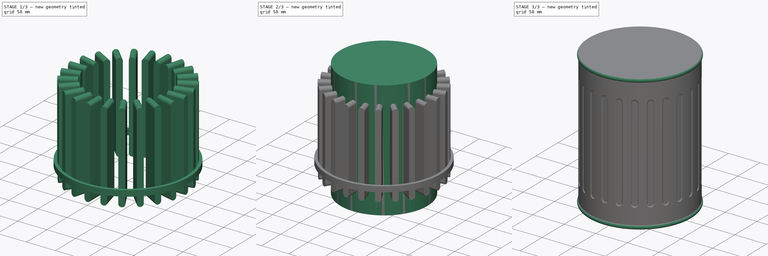
[diagram: build sequence overview — one tinted view per stage of 3, left to right]
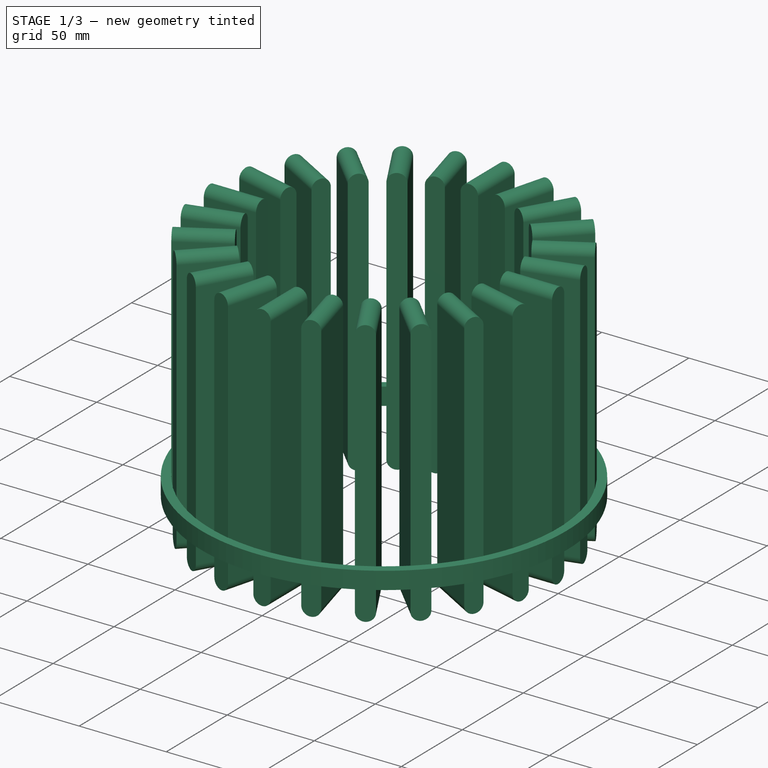
[diagram: stage 1 of 3 — iso view after this stage's code; geometry added in this stage tinted green]
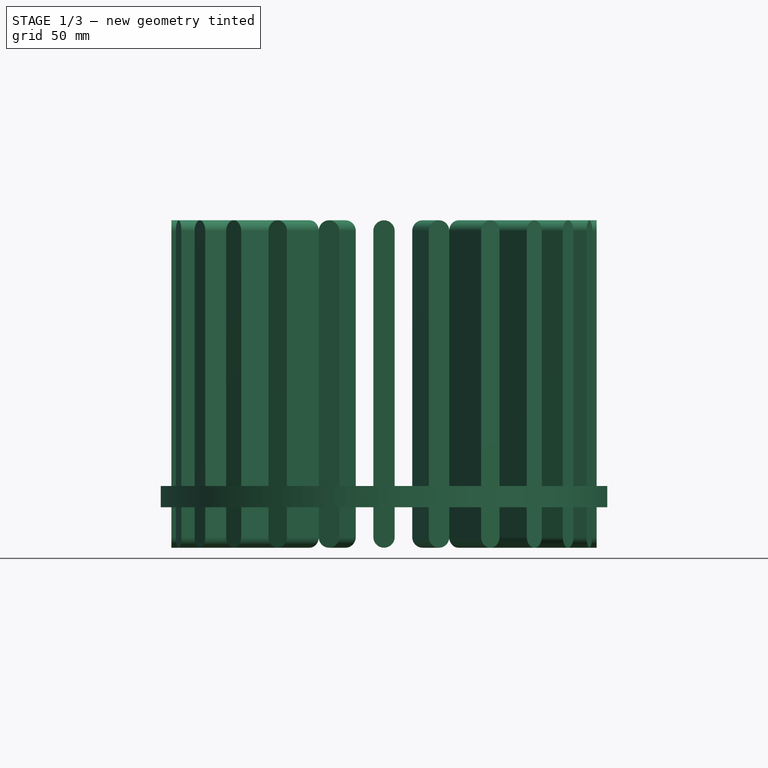
[diagram: stage 1 of 3 — front view after this stage's code; geometry added in this stage tinted green]
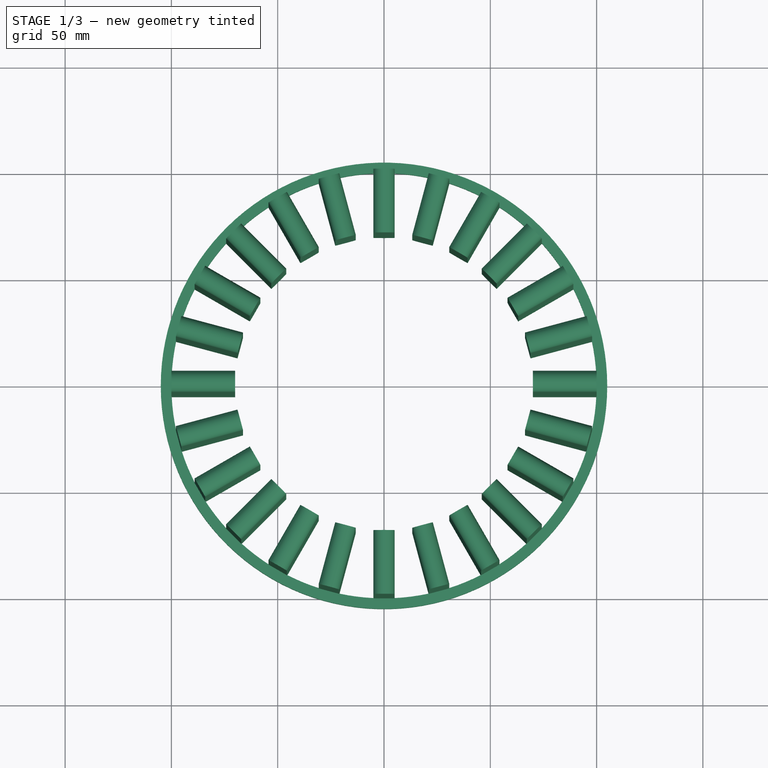
[diagram: stage 1 of 3 — top view after this stage's code; geometry added in this stage tinted green]
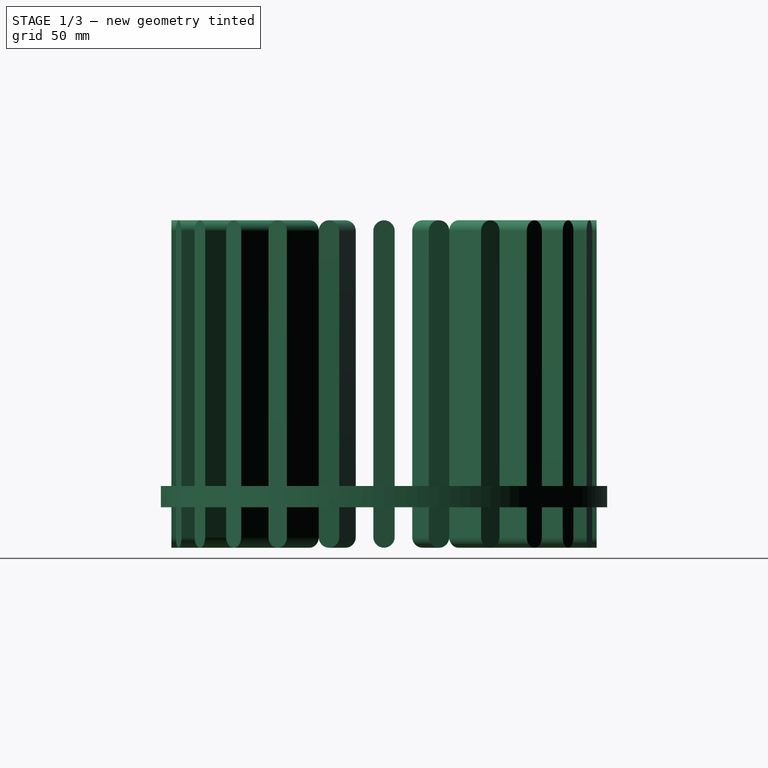
[diagram: stage 1 of 3 — right view after this stage's code; geometry added in this stage tinted green]
FCSTD DOCUMENT  (FreeCAD 0.19R24366 (Git))
Label: TrashCan
License: Creative Commons Attribution-NonCommercial-ShareAlike
LicenseURL: http://creativecommons.org/licenses/by-nc-sa/4.0/
objects: Sketcher::SketchObject×5, PartDesign::Pad×3, PartDesign::Body×2, Spreadsheet::Sheet×1, PartDesign::Revolution×1, PartDesign::PolarPattern×1, PartDesign::Pocket×1, Part::Cut×1, Part::Chamfer×1
note: 20 computed .brp shape members not serialized (recipe doc carries the construction recipe); baked Part::Feature solids carry a one-line shape summary decoded from their .brp

FEATURE [PartDesign::Body] Body
  Group = -> [Sketch,Pad,Sketch001,Revolution]
  Origin = -> Origin
  Tip = -> Revolution
FEATURE [Sketcher::SketchObject] Sketch002
  AttachmentOffset = pos=(0,0,70) rot=(0,0,1;0rad)
  FullyConstrained = true
  MapMode = 5
  Placement = pos=(0,-70,-1.55e-14) rot=(1,0,0;1.5708rad)
  Support = -> [XZ_Plane001]
  expr: Constraints[7] = <<Spreadsheet>>.Radius / 16
  expr: Constraints[14] = <<Spreadsheet>>.Height * 2 / 3
  expr: Constraints[9] = <<Spreadsheet>>.Height
  sketch-geometry (6):
    g0: ArcOfCircle CenterX=0 CenterY=180 CenterZ=0 NormalX=0 NormalY=0 NormalZ=1 AngleXU=0 Radius=5 StartAngle=-9e-16 EndAngle=3.14159
    g1: ArcOfCircle CenterX=-3e-16 CenterY=36 CenterZ=0 NormalX=0 NormalY=0 NormalZ=1 AngleXU=0 Radius=5 StartAngle=3.14159 EndAngle=6.28319
    g2: LineSegment StartX=-5 StartY=180 StartZ=0 EndX=-5 EndY=36 EndZ=0
    g3: LineSegment StartX=5 StartY=180 StartZ=0 EndX=5 EndY=36 EndZ=0
    g4: LineSegment StartX=0 StartY=0 StartZ=0 EndX=5e-16 EndY=216 EndZ=0
    g5: LineSegment StartX=-5 StartY=108 StartZ=0 EndX=5 EndY=108 EndZ=0
  constraints (15):
    c: Tangent(g0,g3) = 1.5708
    c: Tangent(g0,g2) = -1.5708
    c: Tangent(g2,g1) = -1.5708
    c: Tangent(g3,g1) = 1.5708
    c: Vertical(g2)
    c: Equal(g0,g1)
    c: PointOnObject(g0,g-2)
    c: Radius(g0) = 5
    c: Coincident(g4,g-1)
    c: Distance(g4) = 216
    c: PointOnObject(g5,g2)
    c: PointOnObject(g5,g3)
    c: Symmetric(g4,g4,g5)
    c: Symmetric(g0,g1,g5)
    c: Distance(g0,g1) = 144
FEATURE [Sketcher::SketchObject] Sketch004
  AttachmentOffset = pos=(0,0,50) rot=(0,0,1;0rad)
  FullyConstrained = true
  MapMode = 5
  Placement = pos=(0,0,50) rot=(0,0,1;0rad)
  Support = -> [XY_Plane001]
  sketch-geometry (2):
    g0: Circle CenterX=0 CenterY=0 CenterZ=0 NormalX=0 NormalY=0 NormalZ=1 AngleXU=0 Radius=100
    g1: Circle CenterX=0 CenterY=0 CenterZ=0 NormalX=0 NormalY=0 NormalZ=1 AngleXU=0 Radius=105
  constraints (4):
    c: Coincident(g0,g-1)
    c: Coincident(g1,g0)
    c: Radius(g0) = 100
    c: Radius(g1) = 105
FEATURE [PartDesign::Pad] Pad001
  Direction = (1,1,1)
  Length = 10
  Length2 = 100
  Profile = -> Sketch004
  Type = 0
FEATURE [PartDesign::Pad] Pad002
  BaseFeature = -> Pad001
  Direction = (1,1,1)
  Length = 30
  Length2 = 100
  Profile = -> Sketch002
  Type = 0
FEATURE [PartDesign::PolarPattern] PolarPattern
  Angle = 360
  Axis = -> Z_Axis001
  BaseFeature = -> Pad002
  Occurrences = 24
  Originals = -> [Pad002]
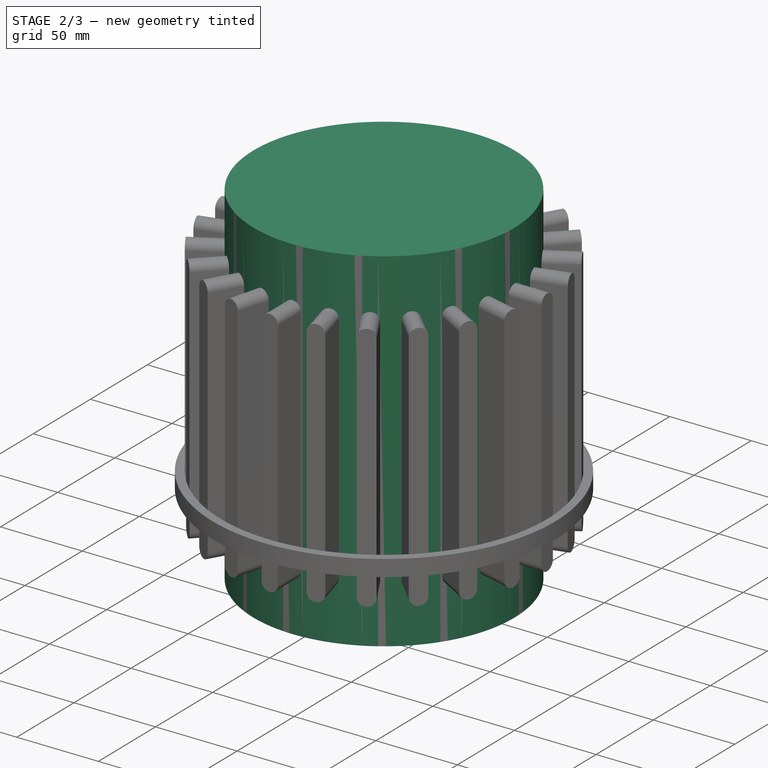
[diagram: stage 2 of 3 — iso view after this stage's code; geometry added in this stage tinted green]
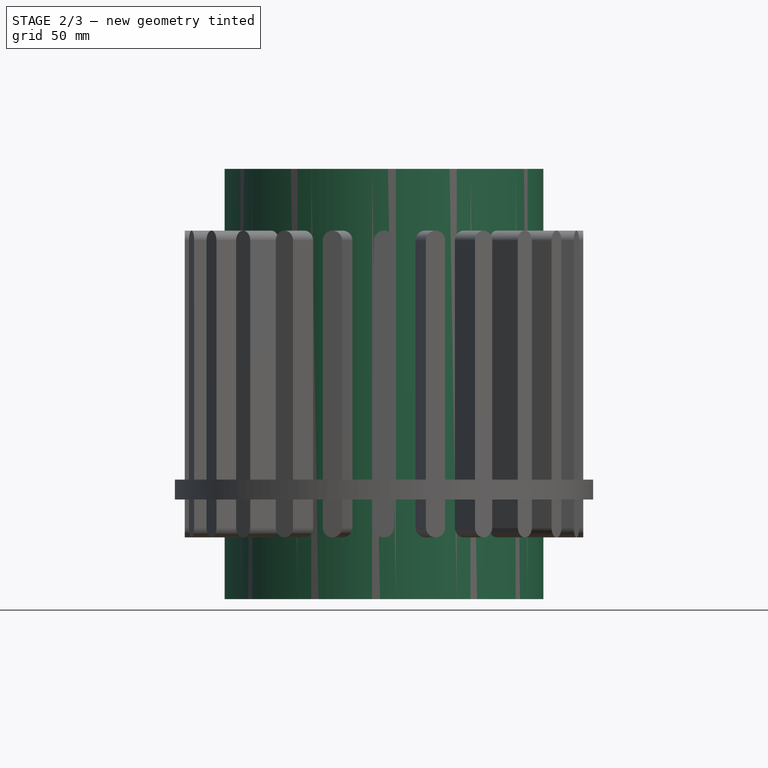
[diagram: stage 2 of 3 — front view after this stage's code; geometry added in this stage tinted green]
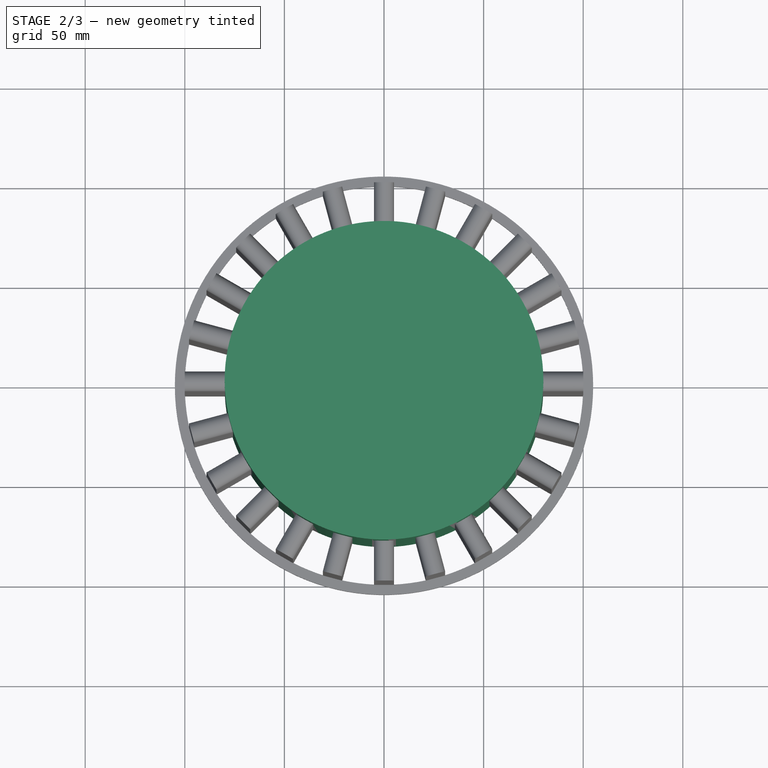
[diagram: stage 2 of 3 — top view after this stage's code; geometry added in this stage tinted green]
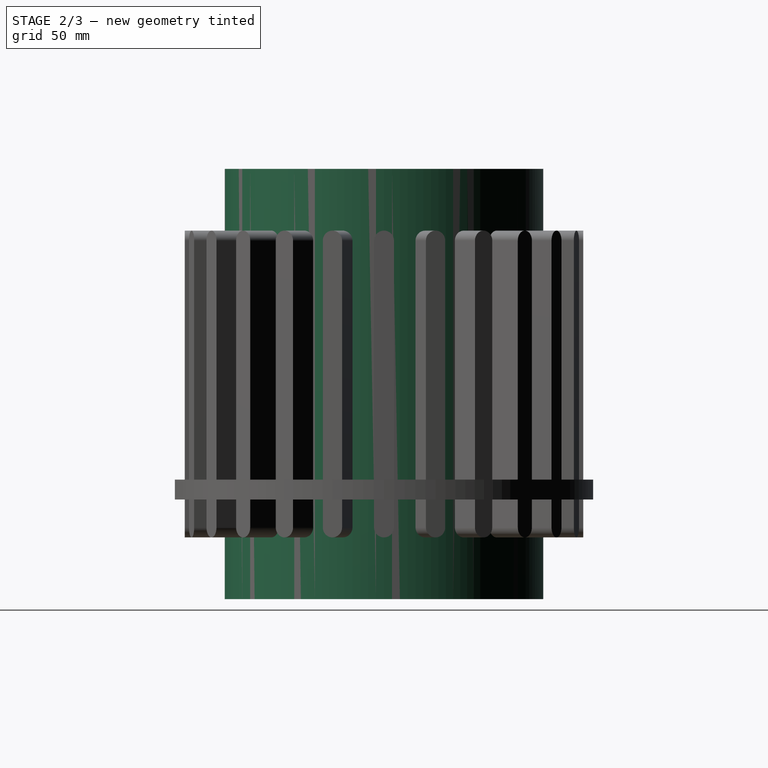
[diagram: stage 2 of 3 — right view after this stage's code; geometry added in this stage tinted green]
FEATURE [Spreadsheet::Sheet] Spreadsheet
  cells = B2=Radius; C2(Radius)==80mm; B3=Height; C3(Height)==Radius * 2.7; B4=Inset; C4(Inset)==1.2mm
FEATURE [Sketcher::SketchObject] Sketch
  FullyConstrained = true
  MapMode = 5
  Support = -> [XY_Plane]
  expr: Constraints[1] = <<Spreadsheet>>.Radius
  sketch-geometry (1):
    g0: Circle CenterX=0 CenterY=0 CenterZ=0 NormalX=0 NormalY=0 NormalZ=1 AngleXU=0 Radius=80
  constraints (2):
    c: Coincident(g0,g-1)
    c: Radius(g0) = 80
FEATURE [PartDesign::Pad] Pad
  Direction = (1,1,1)
  Length = 216
  Length2 = 100
  Profile = -> Sketch
  Type = 0
  expr: Length = <<Spreadsheet>>.Height
FEATURE [Sketcher::SketchObject] Sketch005
  FullyConstrained = true
  MapMode = 5
  Support = -> [XY_Plane001]
  expr: Constraints[1] = <<Spreadsheet>>.Radius - <<Spreadsheet>>.Inset
  sketch-geometry (1):
    g0: Circle CenterX=0 CenterY=0 CenterZ=0 NormalX=0 NormalY=0 NormalZ=1 AngleXU=0 Radius=78.8
  constraints (2):
    c: Coincident(g0,g-1)
    c: Radius(g0) = 78.8
FEATURE [PartDesign::Pocket] Pocket
  BaseFeature = -> PolarPattern
  Length = 5
  Length2 = 100
  Profile = -> Sketch005
  Refine = true
  Reversed = true
  Type = 1
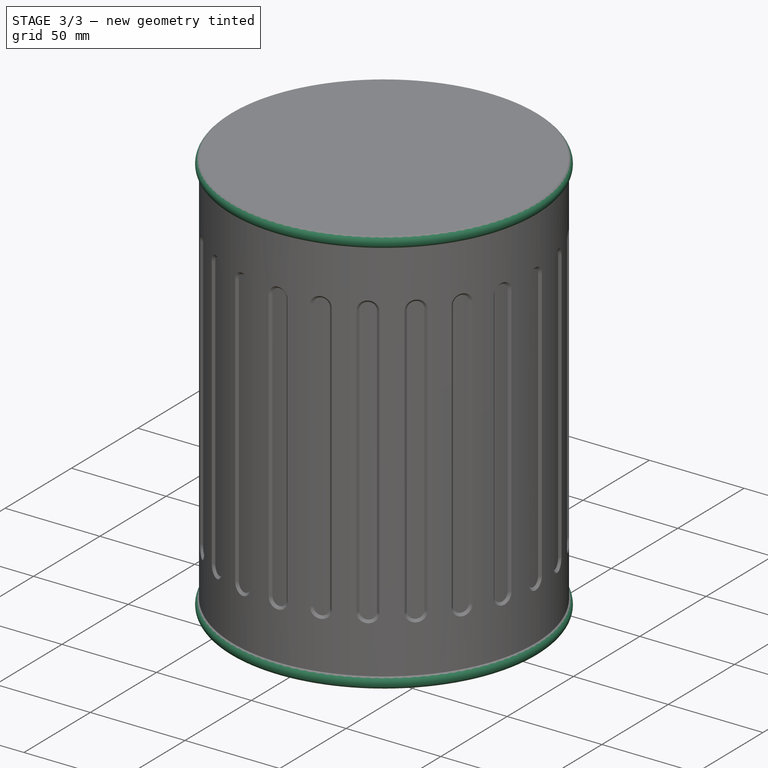
[diagram: stage 3 of 3 — iso view after this stage's code; geometry added in this stage tinted green]
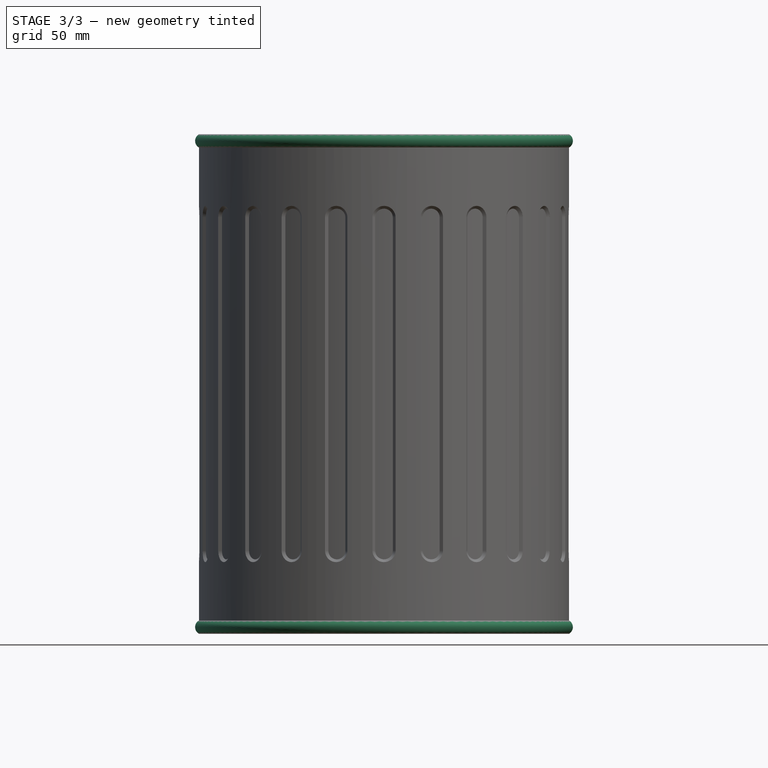
[diagram: stage 3 of 3 — front view after this stage's code; geometry added in this stage tinted green]
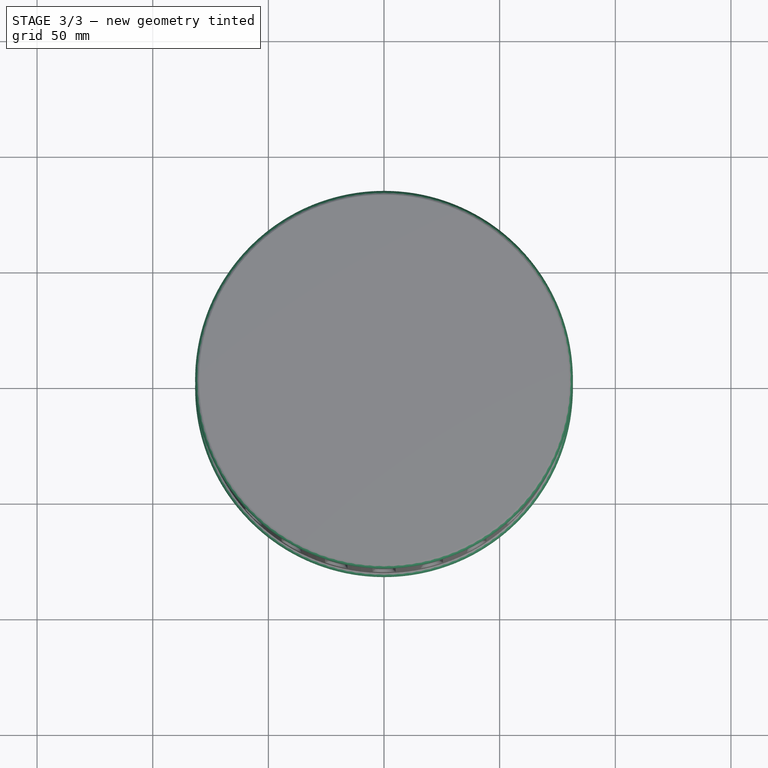
[diagram: stage 3 of 3 — top view after this stage's code; geometry added in this stage tinted green]
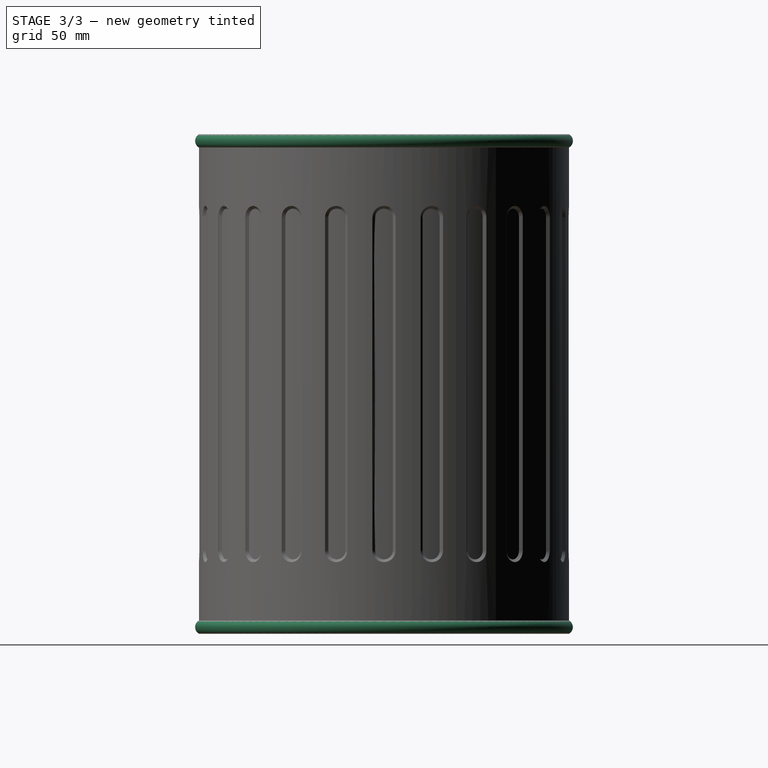
[diagram: stage 3 of 3 — right view after this stage's code; geometry added in this stage tinted green]
FEATURE [Sketcher::SketchObject] Sketch001
  FullyConstrained = true
  MapMode = 5
  Placement = pos=(0,0,0) rot=(1,0,0;1.5708rad)
  Support = -> [XZ_Plane]
  expr: Constraints[14] = <<Spreadsheet>>.Height
  expr: Constraints[5] = <<Spreadsheet>>.Radius / 24
  expr: Constraints[4] = <<Spreadsheet>>.Radius
  sketch-geometry (5):
    g0: ArcOfCircle CenterX=-78.3333 CenterY=2.88675 CenterZ=0 NormalX=0 NormalY=0 NormalZ=1 AngleXU=0 Radius=3.33333 StartAngle=2.0944 EndAngle=4.18879
    g1: LineSegment StartX=-80 StartY=5.7735 StartZ=0 EndX=-80 EndY=0 EndZ=0
    g2: LineSegment StartX=-78.3333 StartY=2.88675 StartZ=0 EndX=-81.6667 EndY=2.88675 EndZ=0
    g3: LineSegment StartX=-80 StartY=210.226 StartZ=0 EndX=-80 EndY=216 EndZ=0
    g4: ArcOfCircle CenterX=-78.3333 CenterY=213.113 CenterZ=0 NormalX=0 NormalY=0 NormalZ=1 AngleXU=0 Radius=3.33333 StartAngle=2.0944 EndAngle=4.18879
  constraints (16):
    c: PointOnObject(g0,g-1)
    c: Coincident(g1,g0)
    c: Coincident(g1,g0)
    c: Vertical(g1)
    c: Distance(g-1,g0) = 80
    c: Radius(g0) = 3.33333
    c: Coincident(g2,g0)
    c: PointOnObject(g2,g0)
    c: Symmetric(g2,g0,g1)
    c: Vertical(g3)
    c: PointOnObject(g3,g1)
    c: Coincident(g4,g3)
    c: Coincident(g4,g3)
    c: Equal(g4,g0)
    c: DistanceY(g0,g3) = 216
    c: Equal(g3,g1)
FEATURE [PartDesign::Revolution] Revolution
  Angle = 360
  Axis = (0,-2e-16,1)
  Base = (0,0,0)
  BaseFeature = -> Pad
  Profile = -> Sketch001
  ReferenceAxis = -> Sketch001 [V_Axis]
FEATURE [PartDesign::Body] Body001
  Group = -> [Sketch002,Sketch004,Pad001,Pad002,PolarPattern,Sketch005,Pocket]
  Origin = -> Origin001
  Tip = -> Pocket
FEATURE [Part::Cut] Cut
  Base = -> Body
  Tool = -> Body001
FEATURE [Part::Chamfer] Chamfer
  Base = -> Cut
  Edges = 98 edges r=1.19: [Edge105,Edge106,Edge109,Edge111,Edge112,Edge117,Edge121,Edge124,Edge126,Edge128,Edge129,Edge132,Edge134,Edge136,Edge137,Edge140,Edge142,Edge144,Edge145,Edge148,Edge150,Edge152,Edge153,Edge156,Edge158,Edge160,Edge161,Edge164,Edge166,Edge168,Edge169,Edge172,Edge174,Edge176,Edge177,Edge180,Edge182,+61 more]
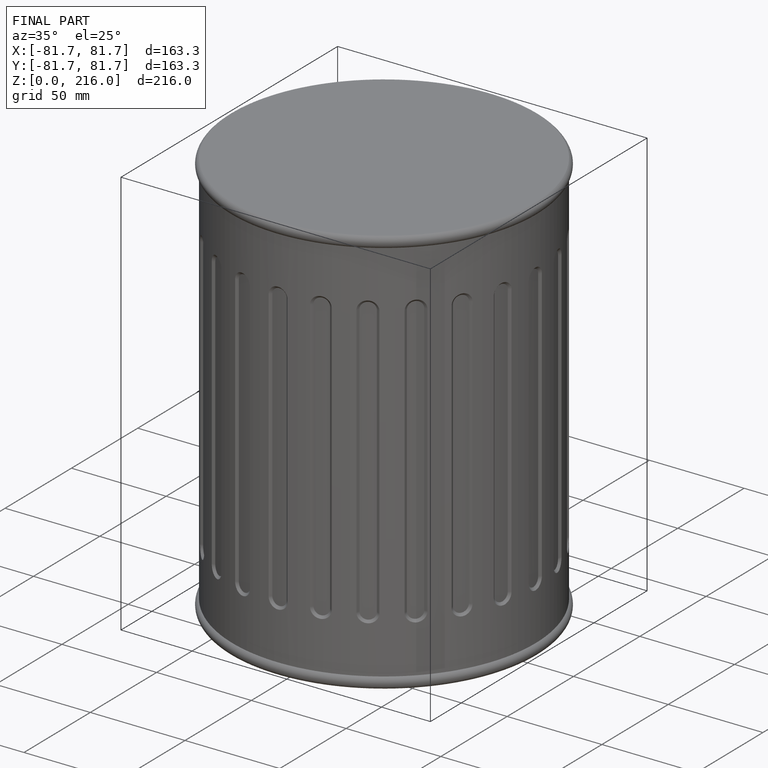
[diagram: finished part — iso view with bounding-box wireframe]
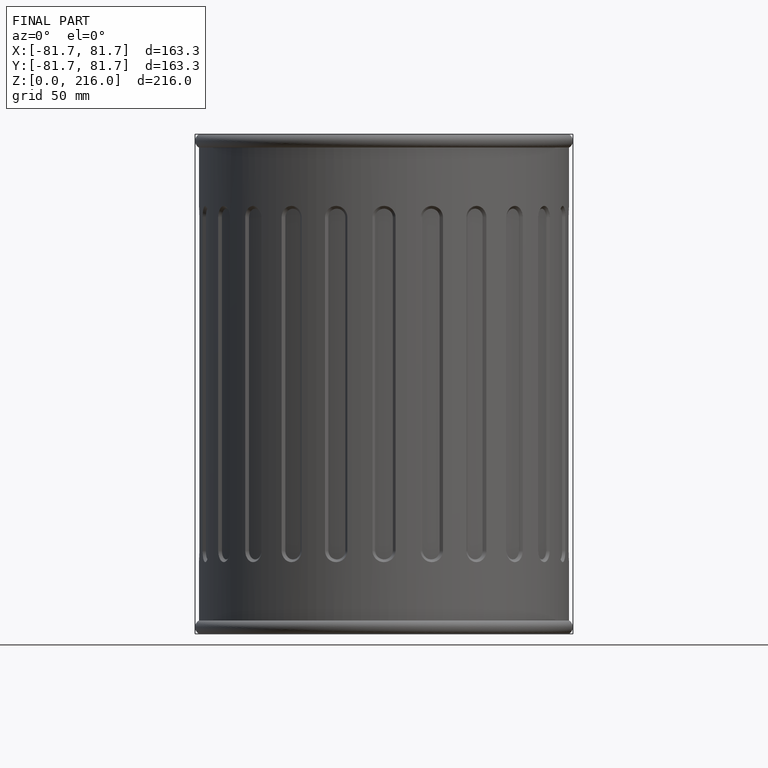
[diagram: finished part — front view with bounding-box wireframe]
